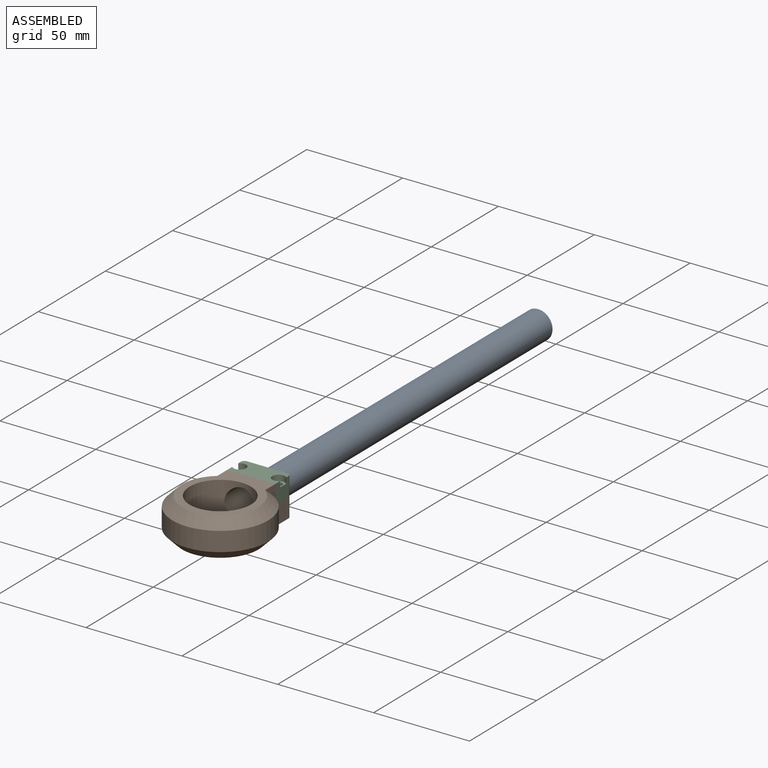
[diagram: assembled view]
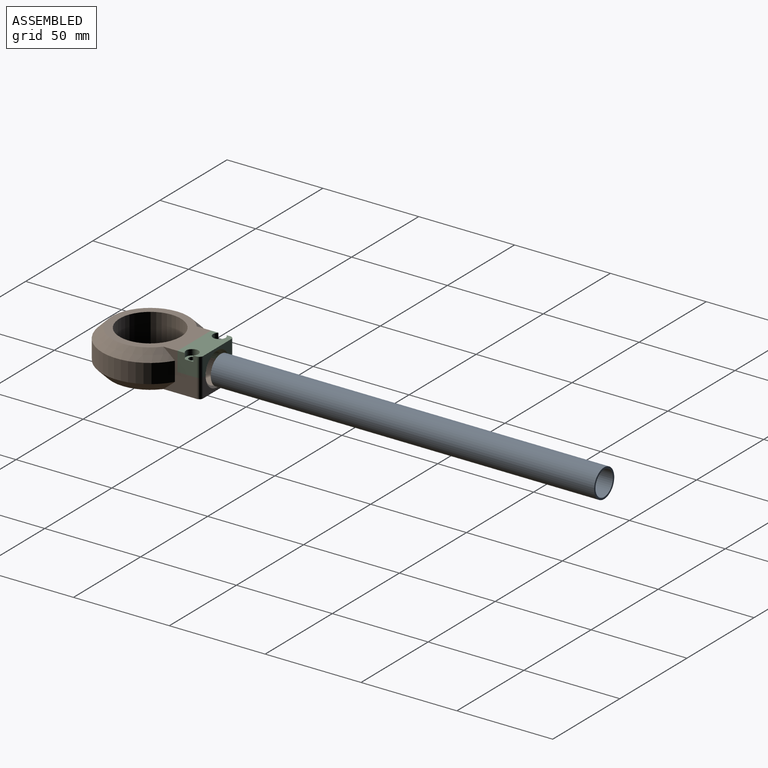
[diagram: assembled view, second angle]
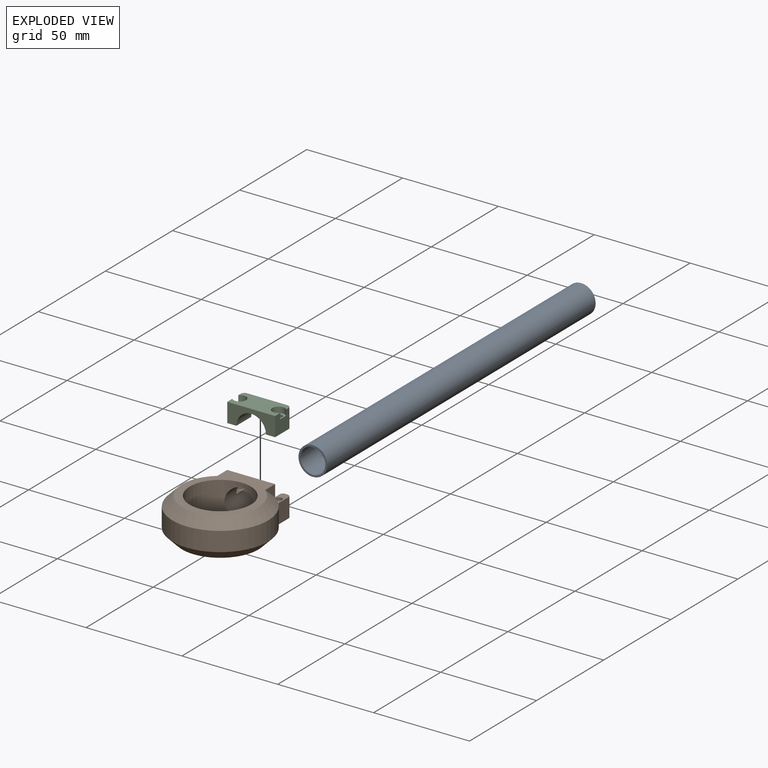
[diagram: exploded view]
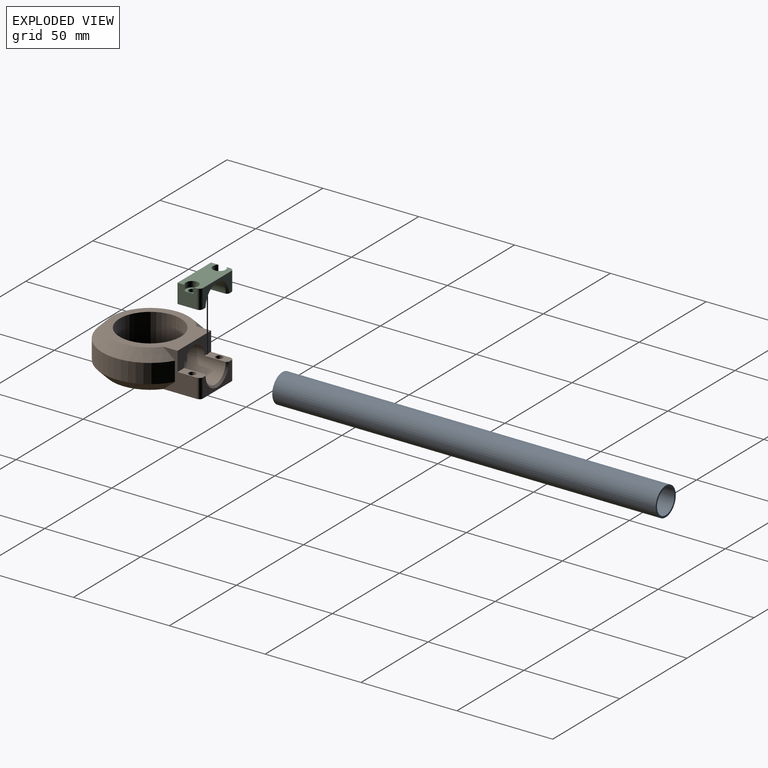
[diagram: exploded view, second angle]
ASSEMBLY  parts=3 mates=2
PART A: 4 faces, bbox 200x15x15 mm
  f0: cylinder r=6.5mm len=200mm, axis (-1,0,0), area 8168.1mm2, adj f2,f3
  f1: cylinder r=7.5mm len=200mm, axis (-1,0,0), area 9424.8mm2, adj f2,f3
  f2: plane 15x15mm, normal (1,0,0), area 44mm2, adj f0,f1
  f3: plane 15x15mm, normal (-1,0,0), area 44mm2, adj f0,f1
PART B: 24 faces, bbox 50x60x20 mm
  f0: plane 20x17.39mm, normal (-1,0,0), area 156.7mm2, adj f2,f4,f5,f9,f10,f12,f14,f19
  f1: plane 21x10mm, normal (0,1,0), area 91.1mm2, adj f2,f12,f13,f15,f18,f19
  f2: plane 55x40mm, normal (0,0,-1), area 1553.4mm2, adj f0,f1,f3,f10,f11,f16,f17,f18
  f3: plane 20x17.39mm, normal (1,0,0), area 156.7mm2, adj f2,f4,f5,f9,f10,f13,f14,f18
  f4: plane 43x40mm, normal (0,0,1), area 562.2mm2, adj f0,f3,f6,f9,f14
  f5: cylinder r=25mm len=50mm, axis (0,0,-1), area 1309mm2, adj f0,f3,f9,f10
  f6: cylinder r=16mm len=32mm, axis (0,0,1), area 1617.3mm2, adj f4,f7,f8
  f7: plane 32x32mm, normal (0,0,1), area 713.3mm2, adj f6,f11,f20,f21,f22,f23
  f8: cylinder r=7.7mm len=19.98mm, axis (0,1,0), area 651.8mm2, adj f6,f12,f13,f14,f15
  f9: cone r=20mm half-angle=45deg, axis (0,0,-1), area 812mm2, adj f0,f3,f4,f5
  f10: cone r=20mm half-angle=45deg, axis (0,0,1), area 812mm2, adj f0,f2,f3,f5
  f11: cylinder r=4mm len=8mm, axis (0,0,1), area 50.3mm2, adj f2,f7
  f12: plane 12x4.8mm, normal (0,0,1), area 46.1mm2, adj f0,f1,f8,f14,f15,f17,f19
  f13: plane 12x4.8mm, normal (0,0,1), area 46.1mm2, adj f1,f3,f8,f14,f15,f16,f18
  f14: plane 25x10mm, normal (0,1,0), area 156.9mm2, adj f0,f3,f4,f8,f12,f13
  f15: cone r=7.7mm half-angle=45deg, axis (0,1,0), area 36.4mm2, adj f1,f8,f12,f13
  f16: cylinder r=1.8mm len=10mm, axis (0,0,1), area 113.1mm2, adj f2,f13
  f17: cylinder r=1.8mm len=10mm, axis (0,0,1), area 113.1mm2, adj f2,f12
  f18: cylinder r=2mm len=10mm, axis (0,0,1), area 31.4mm2, adj f1,f2,f3,f13
  f19: cylinder r=2mm len=10mm, axis (0,0,-1), area 31.4mm2, adj f0,f1,f2,f12
  f20: cylinder r=1.8mm len=3.6mm, axis (0,0,1), area 22.6mm2, adj f2,f7
  f21: cylinder r=1.8mm len=3.6mm, axis (0,0,1), area 22.6mm2, adj f2,f7
  f22: cylinder r=1.8mm len=3.6mm, axis (0,0,1), area 22.6mm2, adj f2,f7
  f23: cylinder r=1.8mm len=3.6mm, axis (0,0,1), area 22.6mm2, adj f2,f7
PART C: 17 faces, bbox 25x12x10 mm
  f0: plane 10x10mm, normal (-1,0,0), area 86.9mm2, adj f1,f4,f5,f13,f14,f16
  f1: plane 25x12mm, normal (0,0,1), area 237mm2, adj f0,f2,f3,f5,f11,f14,f15,f16
  f2: plane 10x10mm, normal (1,0,0), area 86.9mm2, adj f1,f5,f7,f10,f11,f15
  f3: plane 21x10mm, normal (0,1,0), area 91.1mm2, adj f1,f4,f7,f8,f15,f16
  f4: plane 12x4.8mm, normal (0,0,-1), area 46.1mm2, adj f0,f3,f5,f6,f8,f12,f16
  f5: plane 25x10mm, normal (0,-1,0), area 156.9mm2, adj f0,f1,f2,f4,f6,f7
  f6: cylinder r=7.7mm len=15.4mm, axis (0,-1,0), area 266.1mm2, adj f4,f5,f7,f8
  f7: plane 12x4.8mm, normal (0,0,-1), area 46.1mm2, adj f2,f3,f5,f6,f8,f9,f15
  f8: cone r=7.7mm half-angle=45deg, axis (0,1,0), area 36.4mm2, adj f3,f4,f6,f7
  f9: cylinder r=1.8mm len=7mm, axis (0,0,1), area 79.2mm2, adj f7,f10
  f10: plane 6.5x5.65mm, normal (0,0,1), area 20.4mm2, adj f2,f9,f11
  f11: cylinder r=3.25mm len=6.5mm, axis (0,0,1), area 46.8mm2, adj f1,f2,f10
  f12: cylinder r=1.8mm len=7mm, axis (0,0,1), area 79.2mm2, adj f4,f13
  f13: plane 6.5x5.65mm, normal (0,0,1), area 20.4mm2, adj f0,f12,f14
  f14: cylinder r=3.25mm len=6.5mm, axis (0,0,1), area 46.8mm2, adj f0,f1,f13
  f15: cylinder r=2mm len=10mm, axis (0,0,1), area 31.4mm2, adj f1,f2,f3,f7
  f16: cylinder r=2mm len=10mm, axis (0,0,-1), area 31.4mm2, adj f0,f1,f3,f4
PLACE A rot(axis=(-0.71,-0.71,0),180deg) t=(0,136.83,10)mm
PLACE B t=(0,17.5,10)mm
PLACE C t=(0,17.5,10)mm
MATE fastened B.f16 <-> C.f9  axis (0,0,1) through (10.1,29,10)mm
MATE slider B.f8 <-> A.f0  axis (0,-1,0) through (0,34,10)mm
